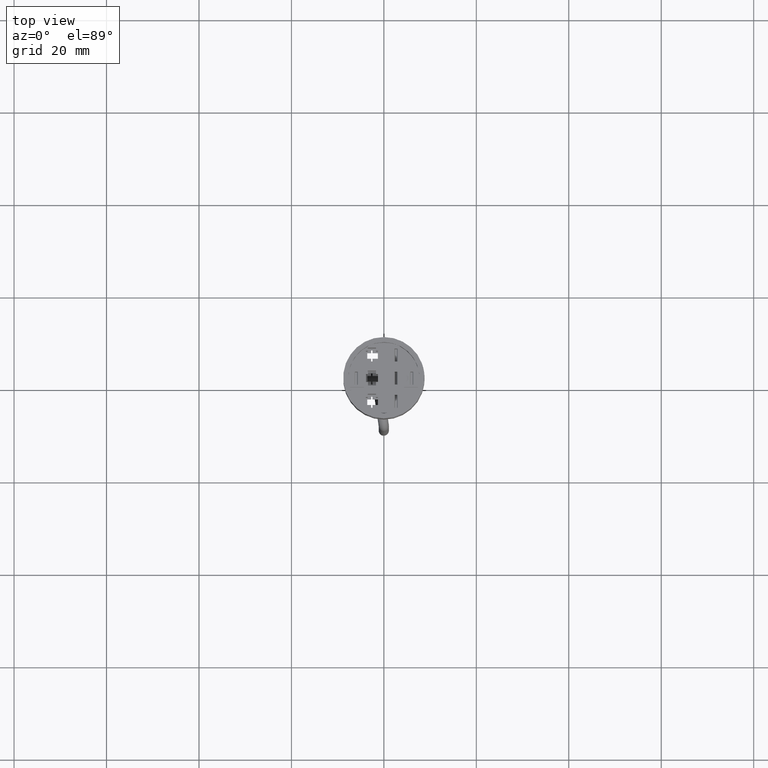
[diagram: clean part render]
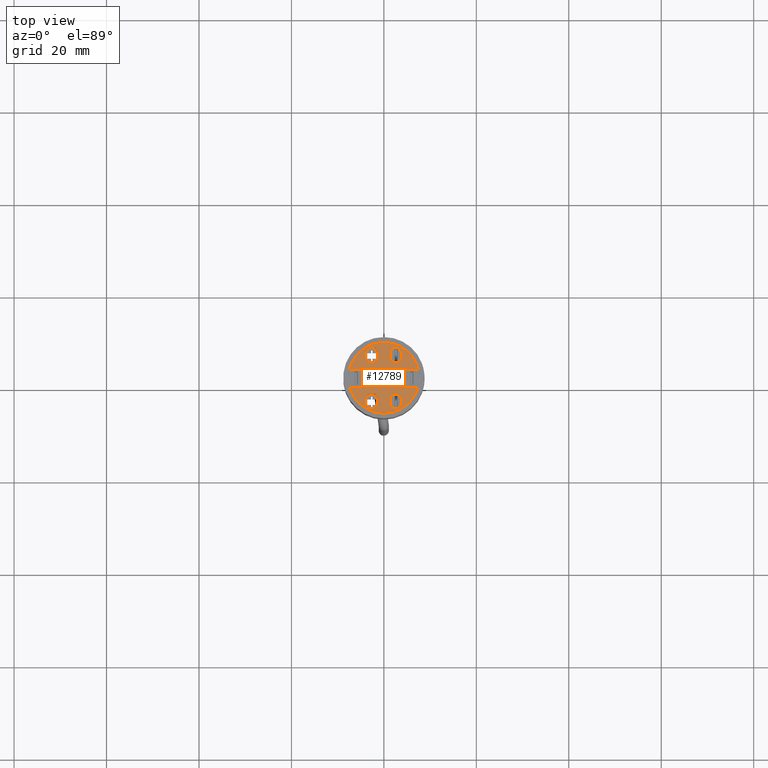
[diagram: same view with one face highlighted and labeled with its STEP entity id]
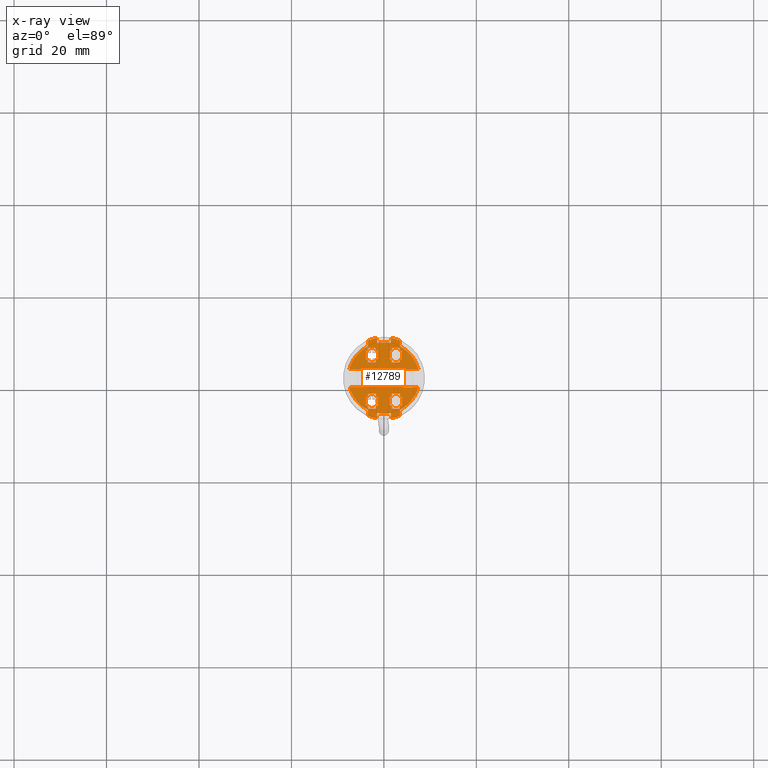
[diagram: x-ray of the same camera — body ghosted, the highlighted face saturated]
A machine part, top view. The second image highlights one B-rep face of the part: STEP entity #12789.
The next image is the same camera in x-ray: the body ghosted, the highlighted face saturated — about 0% of this face is hidden behind the body in this view.
In plain terms, the highlighted planar face has unit normal (0, -0, 1).
Its self-contained STEP definition (entity closure, byte-faithful):
#330=FACE_BOUND('',#1657,.T.);
#331=FACE_BOUND('',#1658,.T.);
#332=FACE_BOUND('',#1659,.T.);
#333=FACE_BOUND('',#1660,.T.);
#334=FACE_BOUND('',#1661,.T.);
#335=FACE_BOUND('',#1662,.T.);
#408=CIRCLE('',#13494,8.8);
#410=CIRCLE('',#13496,8.8);
#412=CIRCLE('',#13498,8.8);
#414=CIRCLE('',#13500,8.8);
#420=CIRCLE('',#13519,7.7);
#421=CIRCLE('',#13520,7.7);
#423=CIRCLE('',#13522,7.7);
#424=CIRCLE('',#13523,7.7);
#425=CIRCLE('',#13524,7.7);
#427=CIRCLE('',#13526,7.7);
#428=CIRCLE('',#13527,7.7);
#959=FACE_OUTER_BOUND('',#1656,.T.);
#1656=EDGE_LOOP('',(#9735,#9736,#9737,#9738,#9739,#9740,#9741,#9742,#9743,
#9744,#9745,#9746,#9747,#9748,#9749,#9750,#9751,#9752,#9753,#9754,#9755,
#9756,#9757,#9758,#9759));
#1657=EDGE_LOOP('',(#9760,#9761,#9762,#9763,#9764,#9765,#9766,#9767,#9768,
#9769,#9770,#9771));
#1658=EDGE_LOOP('',(#9772,#9773,#9774,#9775,#9776,#9777,#9778,#9779,#9780,
#9781,#9782,#9783));
#1659=EDGE_LOOP('',(#9784,#9785,#9786,#9787,#9788,#9789,#9790,#9791,#9792,
#9793,#9794,#9795));
#1660=EDGE_LOOP('',(#9796,#9797,#9798,#9799,#9800,#9801,#9802,#9803,#9804,
#9805,#9806,#9807));
#1661=EDGE_LOOP('',(#9808,#9809,#9810,#9811,#9812,#9813,#9814,#9815,#9816,
#9817,#9818,#9819));
#1662=EDGE_LOOP('',(#9820,#9821,#9822,#9823,#9824,#9825,#9826,#9827,#9828,
#9829,#9830,#9831));
#2135=LINE('',#17599,#3597);
#2139=LINE('',#17607,#3601);
#2142=LINE('',#17613,#3604);
#2145=LINE('',#17619,#3607);
#2148=LINE('',#17625,#3610);
#2151=LINE('',#17631,#3613);
#2154=LINE('',#17637,#3616);
#2173=LINE('',#17683,#3635);
#2176=LINE('',#17689,#3638);
#2179=LINE('',#17695,#3641);
#2182=LINE('',#17701,#3644);
#2185=LINE('',#17706,#3647);
#2255=LINE('',#17851,#3717);
#2259=LINE('',#17859,#3721);
#2262=LINE('',#17865,#3724);
#2265=LINE('',#17871,#3727);
#2268=LINE('',#17877,#3730);
#2271=LINE('',#17883,#3733);
#2274=LINE('',#17889,#3736);
#2293=LINE('',#17935,#3755);
#2296=LINE('',#17941,#3758);
#2299=LINE('',#17947,#3761);
#2302=LINE('',#17953,#3764);
#2305=LINE('',#17958,#3767);
#2375=LINE('',#18103,#3837);
#2379=LINE('',#18111,#3841);
#2382=LINE('',#18117,#3844);
#2385=LINE('',#18123,#3847);
#2388=LINE('',#18129,#3850);
#2391=LINE('',#18135,#3853);
#2394=LINE('',#18141,#3856);
#2413=LINE('',#18187,#3875);
#2416=LINE('',#18193,#3878);
#2419=LINE('',#18199,#3881);
#2422=LINE('',#18205,#3884);
#2425=LINE('',#18210,#3887);
#2926=LINE('',#19853,#4388);
#2929=LINE('',#19858,#4391);
#2930=LINE('',#19861,#4392);
#2935=LINE('',#19872,#4397);
#2938=LINE('',#19881,#4400);
#2941=LINE('',#19886,#4403);
#2942=LINE('',#19889,#4404);
#2947=LINE('',#19900,#4409);
#2953=LINE('',#19929,#4415);
#2954=LINE('',#19931,#4416);
#2955=LINE('',#19932,#4417);
#2956=LINE('',#19934,#4418);
#2957=LINE('',#19936,#4419);
#2958=LINE('',#19937,#4420);
#2959=LINE('',#19940,#4421);
#2960=LINE('',#19942,#4422);
#2961=LINE('',#19944,#4423);
#2962=LINE('',#19946,#4424);
#2963=LINE('',#19948,#4425);
#2964=LINE('',#19950,#4426);
#2965=LINE('',#19952,#4427);
#2966=LINE('',#19954,#4428);
#2967=LINE('',#19956,#4429);
#2968=LINE('',#19958,#4430);
#2969=LINE('',#19960,#4431);
#2970=LINE('',#19961,#4432);
#2971=LINE('',#19964,#4433);
#2972=LINE('',#19966,#4434);
#2973=LINE('',#19968,#4435);
#2974=LINE('',#19970,#4436);
#2975=LINE('',#19972,#4437);
#2976=LINE('',#19974,#4438);
#2977=LINE('',#19976,#4439);
#2978=LINE('',#19978,#4440);
#2979=LINE('',#19980,#4441);
#2980=LINE('',#19982,#4442);
#2981=LINE('',#19984,#4443);
#2982=LINE('',#19985,#4444);
#2983=LINE('',#19988,#4445);
#2984=LINE('',#19990,#4446);
#2985=LINE('',#19992,#4447);
#2986=LINE('',#19994,#4448);
#2987=LINE('',#19996,#4449);
#2988=LINE('',#19998,#4450);
#2989=LINE('',#20000,#4451);
#2990=LINE('',#20002,#4452);
#2991=LINE('',#20004,#4453);
#2992=LINE('',#20006,#4454);
#2993=LINE('',#20008,#4455);
#2994=LINE('',#20009,#4456);
#3597=VECTOR('',#14226,10.);
#3601=VECTOR('',#14232,10.);
#3604=VECTOR('',#14237,10.);
#3607=VECTOR('',#14242,10.);
#3610=VECTOR('',#14247,10.);
#3613=VECTOR('',#14252,10.);
#3616=VECTOR('',#14257,10.);
#3635=VECTOR('',#14302,10.);
#3638=VECTOR('',#14307,10.);
#3641=VECTOR('',#14312,10.);
#3644=VECTOR('',#14317,10.);
#3647=VECTOR('',#14322,10.);
#3717=VECTOR('',#14426,10.);
#3721=VECTOR('',#14432,10.);
#3724=VECTOR('',#14437,10.);
#3727=VECTOR('',#14442,10.);
#3730=VECTOR('',#14447,10.);
#3733=VECTOR('',#14452,10.);
#3736=VECTOR('',#14457,10.);
#3755=VECTOR('',#14502,10.);
#3758=VECTOR('',#14507,10.);
#3761=VECTOR('',#14512,10.);
#3764=VECTOR('',#14517,10.);
#3767=VECTOR('',#14522,10.);
#3837=VECTOR('',#14626,10.);
#3841=VECTOR('',#14632,10.);
#3844=VECTOR('',#14637,10.);
#3847=VECTOR('',#14642,10.);
#3850=VECTOR('',#14647,10.);
#3853=VECTOR('',#14652,10.);
#3856=VECTOR('',#14657,10.);
#3875=VECTOR('',#14702,10.);
#3878=VECTOR('',#14707,10.);
#3881=VECTOR('',#14712,10.);
#3884=VECTOR('',#14717,10.);
#3887=VECTOR('',#14722,10.);
#4388=VECTOR('',#15529,10.);
#4391=VECTOR('',#15534,10.);
#4392=VECTOR('',#15537,10.);
#4397=VECTOR('',#15548,10.);
#4400=VECTOR('',#15557,10.);
#4403=VECTOR('',#15562,10.);
#4404=VECTOR('',#15565,10.);
#4409=VECTOR('',#15576,10.);
#4415=VECTOR('',#15606,10.);
#4416=VECTOR('',#15607,10.);
#4417=VECTOR('',#15608,10.);
#4418=VECTOR('',#15609,10.);
#4419=VECTOR('',#15610,10.);
#4420=VECTOR('',#15611,10.);
#4421=VECTOR('',#15612,10.);
#4422=VECTOR('',#15613,10.);
#4423=VECTOR('',#15614,10.);
#4424=VECTOR('',#15615,10.);
#4425=VECTOR('',#15616,10.);
#4426=VECTOR('',#15617,10.);
#4427=VECTOR('',#15618,10.);
#4428=VECTOR('',#15619,10.);
#4429=VECTOR('',#15620,10.);
#4430=VECTOR('',#15621,10.);
#4431=VECTOR('',#15622,10.);
#4432=VECTOR('',#15623,10.);
#4433=VECTOR('',#15624,10.);
#4434=VECTOR('',#15625,10.);
#4435=VECTOR('',#15626,10.);
#4436=VECTOR('',#15627,10.);
#4437=VECTOR('',#15628,10.);
#4438=VECTOR('',#15629,10.);
#4439=VECTOR('',#15630,10.);
#4440=VECTOR('',#15631,10.);
#4441=VECTOR('',#15632,10.);
#4442=VECTOR('',#15633,10.);
#4443=VECTOR('',#15634,10.);
#4444=VECTOR('',#15635,10.);
#4445=VECTOR('',#15636,10.);
#4446=VECTOR('',#15637,10.);
#4447=VECTOR('',#15638,10.);
#4448=VECTOR('',#15639,10.);
#4449=VECTOR('',#15640,10.);
#4450=VECTOR('',#15641,10.);
#4451=VECTOR('',#15642,10.);
#4452=VECTOR('',#15643,10.);
#4453=VECTOR('',#15644,10.);
#4454=VECTOR('',#15645,10.);
#4455=VECTOR('',#15646,10.);
#4456=VECTOR('',#15647,10.);
#5057=VERTEX_POINT('',#17597);
#5058=VERTEX_POINT('',#17598);
#5061=VERTEX_POINT('',#17606);
#5063=VERTEX_POINT('',#17612);
#5065=VERTEX_POINT('',#17618);
#5067=VERTEX_POINT('',#17624);
#5069=VERTEX_POINT('',#17630);
#5071=VERTEX_POINT('',#17636);
#5085=VERTEX_POINT('',#17682);
#5087=VERTEX_POINT('',#17688);
#5089=VERTEX_POINT('',#17694);
#5091=VERTEX_POINT('',#17700);
#5149=VERTEX_POINT('',#17849);
#5150=VERTEX_POINT('',#17850);
#5153=VERTEX_POINT('',#17858);
#5155=VERTEX_POINT('',#17864);
#5157=VERTEX_POINT('',#17870);
#5159=VERTEX_POINT('',#17876);
#5161=VERTEX_POINT('',#17882);
#5163=VERTEX_POINT('',#17888);
#5177=VERTEX_POINT('',#17934);
#5179=VERTEX_POINT('',#17940);
#5181=VERTEX_POINT('',#17946);
#5183=VERTEX_POINT('',#17952);
#5241=VERTEX_POINT('',#18101);
#5242=VERTEX_POINT('',#18102);
#5245=VERTEX_POINT('',#18110);
#5247=VERTEX_POINT('',#18116);
#5249=VERTEX_POINT('',#18122);
#5251=VERTEX_POINT('',#18128);
#5253=VERTEX_POINT('',#18134);
#5255=VERTEX_POINT('',#18140);
#5269=VERTEX_POINT('',#18186);
#5271=VERTEX_POINT('',#18192);
#5273=VERTEX_POINT('',#18198);
#5275=VERTEX_POINT('',#18204);
#5740=VERTEX_POINT('',#19816);
#5741=VERTEX_POINT('',#19818);
#5744=VERTEX_POINT('',#19824);
#5745=VERTEX_POINT('',#19826);
#5748=VERTEX_POINT('',#19832);
#5749=VERTEX_POINT('',#19834);
#5752=VERTEX_POINT('',#19840);
#5753=VERTEX_POINT('',#19842);
#5756=VERTEX_POINT('',#19852);
#5757=VERTEX_POINT('',#19856);
#5758=VERTEX_POINT('',#19860);
#5761=VERTEX_POINT('',#19870);
#5764=VERTEX_POINT('',#19880);
#5765=VERTEX_POINT('',#19884);
#5766=VERTEX_POINT('',#19888);
#5769=VERTEX_POINT('',#19898);
#5771=VERTEX_POINT('',#19904);
#5772=VERTEX_POINT('',#19907);
#5775=VERTEX_POINT('',#19913);
#5776=VERTEX_POINT('',#19917);
#5779=VERTEX_POINT('',#19923);
#5780=VERTEX_POINT('',#19928);
#5781=VERTEX_POINT('',#19930);
#5782=VERTEX_POINT('',#19933);
#5783=VERTEX_POINT('',#19935);
#5784=VERTEX_POINT('',#19938);
#5785=VERTEX_POINT('',#19939);
#5786=VERTEX_POINT('',#19941);
#5787=VERTEX_POINT('',#19943);
#5788=VERTEX_POINT('',#19945);
#5789=VERTEX_POINT('',#19947);
#5790=VERTEX_POINT('',#19949);
#5791=VERTEX_POINT('',#19951);
#5792=VERTEX_POINT('',#19953);
#5793=VERTEX_POINT('',#19955);
#5794=VERTEX_POINT('',#19957);
#5795=VERTEX_POINT('',#19959);
#5796=VERTEX_POINT('',#19962);
#5797=VERTEX_POINT('',#19963);
#5798=VERTEX_POINT('',#19965);
#5799=VERTEX_POINT('',#19967);
#5800=VERTEX_POINT('',#19969);
#5801=VERTEX_POINT('',#19971);
#5802=VERTEX_POINT('',#19973);
#5803=VERTEX_POINT('',#19975);
#5804=VERTEX_POINT('',#19977);
#5805=VERTEX_POINT('',#19979);
#5806=VERTEX_POINT('',#19981);
#5807=VERTEX_POINT('',#19983);
#5808=VERTEX_POINT('',#19986);
#5809=VERTEX_POINT('',#19987);
#5810=VERTEX_POINT('',#19989);
#5811=VERTEX_POINT('',#19991);
#5812=VERTEX_POINT('',#19993);
#5813=VERTEX_POINT('',#19995);
#5814=VERTEX_POINT('',#19997);
#5815=VERTEX_POINT('',#19999);
#5816=VERTEX_POINT('',#20001);
#5817=VERTEX_POINT('',#20003);
#5818=VERTEX_POINT('',#20005);
#5819=VERTEX_POINT('',#20007);
#6320=EDGE_CURVE('',#5057,#5058,#2135,.T.);
#6324=EDGE_CURVE('',#5061,#5057,#2139,.T.);
#6327=EDGE_CURVE('',#5063,#5061,#2142,.T.);
#6330=EDGE_CURVE('',#5065,#5063,#2145,.T.);
#6333=EDGE_CURVE('',#5067,#5065,#2148,.T.);
#6336=EDGE_CURVE('',#5069,#5067,#2151,.T.);
#6339=EDGE_CURVE('',#5071,#5069,#2154,.T.);
#6362=EDGE_CURVE('',#5085,#5071,#2173,.T.);
#6365=EDGE_CURVE('',#5087,#5085,#2176,.T.);
#6368=EDGE_CURVE('',#5089,#5087,#2179,.T.);
#6371=EDGE_CURVE('',#5091,#5089,#2182,.T.);
#6374=EDGE_CURVE('',#5058,#5091,#2185,.T.);
#6446=EDGE_CURVE('',#5149,#5150,#2255,.T.);
#6450=EDGE_CURVE('',#5153,#5149,#2259,.T.);
#6453=EDGE_CURVE('',#5155,#5153,#2262,.T.);
#6456=EDGE_CURVE('',#5157,#5155,#2265,.T.);
#6459=EDGE_CURVE('',#5159,#5157,#2268,.T.);
#6462=EDGE_CURVE('',#5161,#5159,#2271,.T.);
#6465=EDGE_CURVE('',#5163,#5161,#2274,.T.);
#6488=EDGE_CURVE('',#5177,#5163,#2293,.T.);
#6491=EDGE_CURVE('',#5179,#5177,#2296,.T.);
#6494=EDGE_CURVE('',#5181,#5179,#2299,.T.);
#6497=EDGE_CURVE('',#5183,#5181,#2302,.T.);
#6500=EDGE_CURVE('',#5150,#5183,#2305,.T.);
#6572=EDGE_CURVE('',#5241,#5242,#2375,.T.);
#6576=EDGE_CURVE('',#5245,#5241,#2379,.T.);
#6579=EDGE_CURVE('',#5247,#5245,#2382,.T.);
#6582=EDGE_CURVE('',#5249,#5247,#2385,.T.);
#6585=EDGE_CURVE('',#5251,#5249,#2388,.T.);
#6588=EDGE_CURVE('',#5253,#5251,#2391,.T.);
#6591=EDGE_CURVE('',#5255,#5253,#2394,.T.);
#6614=EDGE_CURVE('',#5269,#5255,#2413,.T.);
#6617=EDGE_CURVE('',#5271,#5269,#2416,.T.);
#6620=EDGE_CURVE('',#5273,#5271,#2419,.T.);
#6623=EDGE_CURVE('',#5275,#5273,#2422,.T.);
#6626=EDGE_CURVE('',#5242,#5275,#2425,.T.);
#7226=EDGE_CURVE('',#5740,#5741,#408,.T.);
#7230=EDGE_CURVE('',#5744,#5745,#410,.T.);
#7234=EDGE_CURVE('',#5748,#5749,#412,.T.);
#7238=EDGE_CURVE('',#5752,#5753,#414,.T.);
#7243=EDGE_CURVE('',#5745,#5756,#2926,.T.);
#7246=EDGE_CURVE('',#5744,#5757,#2929,.T.);
#7247=EDGE_CURVE('',#5758,#5741,#2930,.T.);
#7253=EDGE_CURVE('',#5761,#5740,#2935,.T.);
#7257=EDGE_CURVE('',#5753,#5764,#2938,.T.);
#7260=EDGE_CURVE('',#5752,#5765,#2941,.T.);
#7261=EDGE_CURVE('',#5766,#5749,#2942,.T.);
#7267=EDGE_CURVE('',#5769,#5748,#2947,.T.);
#7270=EDGE_CURVE('',#5771,#5765,#420,.T.);
#7271=EDGE_CURVE('',#5764,#5772,#421,.T.);
#7275=EDGE_CURVE('',#5775,#5769,#423,.T.);
#7276=EDGE_CURVE('',#5766,#5761,#424,.T.);
#7277=EDGE_CURVE('',#5758,#5776,#425,.T.);
#7281=EDGE_CURVE('',#5779,#5757,#427,.T.);
#7282=EDGE_CURVE('',#5756,#5771,#428,.T.);
#7283=EDGE_CURVE('',#5775,#5780,#2953,.T.);
#7284=EDGE_CURVE('',#5780,#5781,#2954,.T.);
#7285=EDGE_CURVE('',#5781,#5772,#2955,.T.);
#7286=EDGE_CURVE('',#5779,#5782,#2956,.T.);
#7287=EDGE_CURVE('',#5782,#5783,#2957,.T.);
#7288=EDGE_CURVE('',#5783,#5776,#2958,.T.);
#7289=EDGE_CURVE('',#5784,#5785,#2959,.T.);
#7290=EDGE_CURVE('',#5785,#5786,#2960,.T.);
#7291=EDGE_CURVE('',#5786,#5787,#2961,.T.);
#7292=EDGE_CURVE('',#5787,#5788,#2962,.T.);
#7293=EDGE_CURVE('',#5788,#5789,#2963,.T.);
#7294=EDGE_CURVE('',#5789,#5790,#2964,.T.);
#7295=EDGE_CURVE('',#5790,#5791,#2965,.T.);
#7296=EDGE_CURVE('',#5791,#5792,#2966,.T.);
#7297=EDGE_CURVE('',#5792,#5793,#2967,.T.);
#7298=EDGE_CURVE('',#5793,#5794,#2968,.T.);
#7299=EDGE_CURVE('',#5794,#5795,#2969,.T.);
#7300=EDGE_CURVE('',#5795,#5784,#2970,.T.);
#7301=EDGE_CURVE('',#5796,#5797,#2971,.T.);
#7302=EDGE_CURVE('',#5797,#5798,#2972,.T.);
#7303=EDGE_CURVE('',#5798,#5799,#2973,.T.);
#7304=EDGE_CURVE('',#5799,#5800,#2974,.T.);
#7305=EDGE_CURVE('',#5800,#5801,#2975,.T.);
#7306=EDGE_CURVE('',#5801,#5802,#2976,.T.);
#7307=EDGE_CURVE('',#5802,#5803,#2977,.T.);
#7308=EDGE_CURVE('',#5803,#5804,#2978,.T.);
#7309=EDGE_CURVE('',#5804,#5805,#2979,.T.);
#7310=EDGE_CURVE('',#5805,#5806,#2980,.T.);
#7311=EDGE_CURVE('',#5806,#5807,#2981,.T.);
#7312=EDGE_CURVE('',#5807,#5796,#2982,.T.);
#7313=EDGE_CURVE('',#5808,#5809,#2983,.T.);
#7314=EDGE_CURVE('',#5809,#5810,#2984,.T.);
#7315=EDGE_CURVE('',#5810,#5811,#2985,.T.);
#7316=EDGE_CURVE('',#5811,#5812,#2986,.T.);
#7317=EDGE_CURVE('',#5812,#5813,#2987,.T.);
#7318=EDGE_CURVE('',#5813,#5814,#2988,.T.);
#7319=EDGE_CURVE('',#5814,#5815,#2989,.T.);
#7320=EDGE_CURVE('',#5815,#5816,#2990,.T.);
#7321=EDGE_CURVE('',#5816,#5817,#2991,.T.);
#7322=EDGE_CURVE('',#5817,#5818,#2992,.T.);
#7323=EDGE_CURVE('',#5818,#5819,#2993,.T.);
#7324=EDGE_CURVE('',#5819,#5808,#2994,.T.);
#9735=ORIENTED_EDGE('',*,*,#7276,.F.);
#9736=ORIENTED_EDGE('',*,*,#7261,.T.);
#9737=ORIENTED_EDGE('',*,*,#7234,.F.);
#9738=ORIENTED_EDGE('',*,*,#7267,.F.);
#9739=ORIENTED_EDGE('',*,*,#7275,.F.);
#9740=ORIENTED_EDGE('',*,*,#7283,.T.);
#9741=ORIENTED_EDGE('',*,*,#7284,.T.);
#9742=ORIENTED_EDGE('',*,*,#7285,.T.);
#9743=ORIENTED_EDGE('',*,*,#7271,.F.);
#9744=ORIENTED_EDGE('',*,*,#7257,.F.);
#9745=ORIENTED_EDGE('',*,*,#7238,.F.);
#9746=ORIENTED_EDGE('',*,*,#7260,.T.);
#9747=ORIENTED_EDGE('',*,*,#7270,.F.);
#9748=ORIENTED_EDGE('',*,*,#7282,.F.);
#9749=ORIENTED_EDGE('',*,*,#7243,.F.);
#9750=ORIENTED_EDGE('',*,*,#7230,.F.);
#9751=ORIENTED_EDGE('',*,*,#7246,.T.);
#9752=ORIENTED_EDGE('',*,*,#7281,.F.);
#9753=ORIENTED_EDGE('',*,*,#7286,.T.);
#9754=ORIENTED_EDGE('',*,*,#7287,.T.);
#9755=ORIENTED_EDGE('',*,*,#7288,.T.);
#9756=ORIENTED_EDGE('',*,*,#7277,.F.);
#9757=ORIENTED_EDGE('',*,*,#7247,.T.);
#9758=ORIENTED_EDGE('',*,*,#7226,.F.);
#9759=ORIENTED_EDGE('',*,*,#7253,.F.);
#9760=ORIENTED_EDGE('',*,*,#7289,.T.);
#9761=ORIENTED_EDGE('',*,*,#7290,.T.);
#9762=ORIENTED_EDGE('',*,*,#7291,.T.);
#9763=ORIENTED_EDGE('',*,*,#7292,.T.);
#9764=ORIENTED_EDGE('',*,*,#7293,.T.);
#9765=ORIENTED_EDGE('',*,*,#7294,.T.);
#9766=ORIENTED_EDGE('',*,*,#7295,.T.);
#9767=ORIENTED_EDGE('',*,*,#7296,.T.);
#9768=ORIENTED_EDGE('',*,*,#7297,.T.);
#9769=ORIENTED_EDGE('',*,*,#7298,.T.);
#9770=ORIENTED_EDGE('',*,*,#7299,.T.);
#9771=ORIENTED_EDGE('',*,*,#7300,.T.);
#9772=ORIENTED_EDGE('',*,*,#7301,.T.);
#9773=ORIENTED_EDGE('',*,*,#7302,.T.);
#9774=ORIENTED_EDGE('',*,*,#7303,.T.);
#9775=ORIENTED_EDGE('',*,*,#7304,.T.);
#9776=ORIENTED_EDGE('',*,*,#7305,.T.);
#9777=ORIENTED_EDGE('',*,*,#7306,.T.);
#9778=ORIENTED_EDGE('',*,*,#7307,.T.);
#9779=ORIENTED_EDGE('',*,*,#7308,.T.);
#9780=ORIENTED_EDGE('',*,*,#7309,.T.);
#9781=ORIENTED_EDGE('',*,*,#7310,.T.);
#9782=ORIENTED_EDGE('',*,*,#7311,.T.);
#9783=ORIENTED_EDGE('',*,*,#7312,.T.);
#9784=ORIENTED_EDGE('',*,*,#6626,.T.);
#9785=ORIENTED_EDGE('',*,*,#6623,.T.);
#9786=ORIENTED_EDGE('',*,*,#6620,.T.);
#9787=ORIENTED_EDGE('',*,*,#6617,.T.);
#9788=ORIENTED_EDGE('',*,*,#6614,.T.);
#9789=ORIENTED_EDGE('',*,*,#6591,.T.);
#9790=ORIENTED_EDGE('',*,*,#6588,.T.);
#9791=ORIENTED_EDGE('',*,*,#6585,.T.);
#9792=ORIENTED_EDGE('',*,*,#6582,.T.);
#9793=ORIENTED_EDGE('',*,*,#6579,.T.);
#9794=ORIENTED_EDGE('',*,*,#6576,.T.);
#9795=ORIENTED_EDGE('',*,*,#6572,.T.);
#9796=ORIENTED_EDGE('',*,*,#6374,.T.);
#9797=ORIENTED_EDGE('',*,*,#6371,.T.);
#9798=ORIENTED_EDGE('',*,*,#6368,.T.);
#9799=ORIENTED_EDGE('',*,*,#6365,.T.);
#9800=ORIENTED_EDGE('',*,*,#6362,.T.);
#9801=ORIENTED_EDGE('',*,*,#6339,.T.);
#9802=ORIENTED_EDGE('',*,*,#6336,.T.);
#9803=ORIENTED_EDGE('',*,*,#6333,.T.);
#9804=ORIENTED_EDGE('',*,*,#6330,.T.);
#9805=ORIENTED_EDGE('',*,*,#6327,.T.);
#9806=ORIENTED_EDGE('',*,*,#6324,.T.);
#9807=ORIENTED_EDGE('',*,*,#6320,.T.);
#9808=ORIENTED_EDGE('',*,*,#7313,.T.);
#9809=ORIENTED_EDGE('',*,*,#7314,.T.);
#9810=ORIENTED_EDGE('',*,*,#7315,.T.);
#9811=ORIENTED_EDGE('',*,*,#7316,.T.);
#9812=ORIENTED_EDGE('',*,*,#7317,.T.);
#9813=ORIENTED_EDGE('',*,*,#7318,.T.);
#9814=ORIENTED_EDGE('',*,*,#7319,.T.);
#9815=ORIENTED_EDGE('',*,*,#7320,.T.);
#9816=ORIENTED_EDGE('',*,*,#7321,.T.);
#9817=ORIENTED_EDGE('',*,*,#7322,.T.);
#9818=ORIENTED_EDGE('',*,*,#7323,.T.);
#9819=ORIENTED_EDGE('',*,*,#7324,.T.);
#9820=ORIENTED_EDGE('',*,*,#6494,.T.);
#9821=ORIENTED_EDGE('',*,*,#6491,.T.);
#9822=ORIENTED_EDGE('',*,*,#6488,.T.);
#9823=ORIENTED_EDGE('',*,*,#6465,.T.);
#9824=ORIENTED_EDGE('',*,*,#6462,.T.);
#9825=ORIENTED_EDGE('',*,*,#6459,.T.);
#9826=ORIENTED_EDGE('',*,*,#6456,.T.);
#9827=ORIENTED_EDGE('',*,*,#6453,.T.);
#9828=ORIENTED_EDGE('',*,*,#6450,.T.);
#9829=ORIENTED_EDGE('',*,*,#6446,.T.);
#9830=ORIENTED_EDGE('',*,*,#6500,.T.);
#9831=ORIENTED_EDGE('',*,*,#6497,.T.);
#12254=PLANE('',#13528);
#12789=ADVANCED_FACE('',(#959,#330,#331,#332,#333,#334,#335),#12254,.T.);
#13494=AXIS2_PLACEMENT_3D('',#19819,#15500,#15501);
#13496=AXIS2_PLACEMENT_3D('',#19827,#15506,#15507);
#13498=AXIS2_PLACEMENT_3D('',#19835,#15512,#15513);
#13500=AXIS2_PLACEMENT_3D('',#19843,#15518,#15519);
#13519=AXIS2_PLACEMENT_3D('',#19906,#15582,#15583);
#13520=AXIS2_PLACEMENT_3D('',#19908,#15584,#15585);
#13522=AXIS2_PLACEMENT_3D('',#19915,#15590,#15591);
#13523=AXIS2_PLACEMENT_3D('',#19916,#15592,#15593);
#13524=AXIS2_PLACEMENT_3D('',#19918,#15594,#15595);
#13526=AXIS2_PLACEMENT_3D('',#19925,#15600,#15601);
#13527=AXIS2_PLACEMENT_3D('',#19926,#15602,#15603);
#13528=AXIS2_PLACEMENT_3D('',#19927,#15604,#15605);
#14226=DIRECTION('',(-8.63414043766191E-15,1.,1.23414285699513E-14));
#14232=DIRECTION('',(-1.,-8.45791456073728E-15,-9.05267235124983E-30));
#14237=DIRECTION('',(7.84112399150108E-15,-1.,-1.23414285699513E-14));
#14242=DIRECTION('',(-1.,-7.84112399150108E-15,-1.44059559840165E-30));
#14247=DIRECTION('',(8.45791456073728E-15,-1.,-1.23414285699513E-14));
#14252=DIRECTION('',(1.,7.84112399150108E-15,1.44059559840165E-30));
#14257=DIRECTION('',(7.84112399150108E-15,-1.,-1.23414285699513E-14));
#14302=DIRECTION('',(1.,9.07470512997347E-15,1.6664749104098E-29));
#14307=DIRECTION('',(-7.84112399150108E-15,1.,1.23414285699513E-14));
#14312=DIRECTION('',(1.,1.0616681553064E-14,3.56949409862185E-29));
#14317=DIRECTION('',(-7.84112399150108E-15,1.,1.23414285699513E-14));
#14322=DIRECTION('',(-1.,-7.84112399150108E-15,-1.44059559840165E-30));
#14426=DIRECTION('',(-8.63414043766191E-15,1.,1.23414285699513E-14));
#14432=DIRECTION('',(-1.,-8.45791456073728E-15,-9.05267235124983E-30));
#14437=DIRECTION('',(7.84112399150108E-15,-1.,-1.23414285699513E-14));
#14442=DIRECTION('',(-1.,-7.84112399150108E-15,-1.44059559840165E-30));
#14447=DIRECTION('',(8.45791456073728E-15,-1.,-1.23414285699513E-14));
#14452=DIRECTION('',(1.,7.84112399150108E-15,1.44059559840165E-30));
#14457=DIRECTION('',(7.84112399150108E-15,-1.,-1.23414285699513E-14));
#14502=DIRECTION('',(1.,9.07470512997347E-15,1.6664749104098E-29));
#14507=DIRECTION('',(-7.84112399150108E-15,1.,1.23414285699513E-14));
#14512=DIRECTION('',(1.,1.0616681553064E-14,3.56949409862185E-29));
#14517=DIRECTION('',(-7.84112399150108E-15,1.,1.23414285699513E-14));
#14522=DIRECTION('',(-1.,-7.84112399150108E-15,-1.44059559840165E-30));
#14626=DIRECTION('',(-8.63414043766191E-15,1.,1.23414285699513E-14));
#14632=DIRECTION('',(-1.,-8.45791456073728E-15,-9.05267235124983E-30));
#14637=DIRECTION('',(7.84112399150108E-15,-1.,-1.23414285699513E-14));
#14642=DIRECTION('',(-1.,-7.84112399150108E-15,-1.44059559840165E-30));
#14647=DIRECTION('',(8.45791456073728E-15,-1.,-1.23414285699513E-14));
#14652=DIRECTION('',(1.,7.84112399150108E-15,1.44059559840165E-30));
#14657=DIRECTION('',(7.84112399150108E-15,-1.,-1.23414285699513E-14));
#14702=DIRECTION('',(1.,9.07470512997347E-15,1.6664749104098E-29));
#14707=DIRECTION('',(-7.84112399150108E-15,1.,1.23414285699513E-14));
#14712=DIRECTION('',(1.,1.0616681553064E-14,3.56949409862185E-29));
#14717=DIRECTION('',(-7.84112399150108E-15,1.,1.23414285699513E-14));
#14722=DIRECTION('',(-1.,-7.84112399150108E-15,-1.44059559840165E-30));
#15500=DIRECTION('center_axis',(-9.53300760508407E-29,1.23414285699513E-14,
-1.));
#15501=DIRECTION('ref_axis',(7.84112399150108E-15,-1.,-1.23414285699513E-14));
#15506=DIRECTION('center_axis',(-9.53300760508407E-29,1.23414285699513E-14,
-1.));
#15507=DIRECTION('ref_axis',(7.84112399150108E-15,-1.,-1.23414285699513E-14));
#15512=DIRECTION('center_axis',(-9.53300760508407E-29,1.23414285699513E-14,
-1.));
#15513=DIRECTION('ref_axis',(7.84112399150108E-15,-1.,-1.23414285699513E-14));
#15518=DIRECTION('center_axis',(-9.53300760508407E-29,1.23414285699513E-14,
-1.));
#15519=DIRECTION('ref_axis',(7.84112399150108E-15,-1.,-1.23414285699513E-14));
#15529=DIRECTION('',(7.84112399150108E-15,-1.,-1.23414285699513E-14));
#15534=DIRECTION('',(7.84112399150108E-15,-1.,-1.23414285699513E-14));
#15537=DIRECTION('',(7.84112399150108E-15,-1.,-1.23414285699513E-14));
#15548=DIRECTION('',(7.84112399150108E-15,-1.,-1.23414285699513E-14));
#15557=DIRECTION('',(7.84112399150108E-15,-1.,-1.23414285699513E-14));
#15562=DIRECTION('',(7.84112399150108E-15,-1.,-1.23414285699513E-14));
#15565=DIRECTION('',(7.84112399150108E-15,-1.,-1.23414285699513E-14));
#15576=DIRECTION('',(7.84112399150108E-15,-1.,-1.23414285699513E-14));
#15582=DIRECTION('center_axis',(-9.53300760508407E-29,1.23414285699513E-14,
-1.));
#15583=DIRECTION('ref_axis',(7.84112399150108E-15,-1.,-1.23414285699513E-14));
#15584=DIRECTION('center_axis',(-9.53300760508407E-29,1.23414285699513E-14,
-1.));
#15585=DIRECTION('ref_axis',(7.84112399150108E-15,-1.,-1.23414285699513E-14));
#15590=DIRECTION('center_axis',(-9.53300760508407E-29,1.23414285699513E-14,
-1.));
#15591=DIRECTION('ref_axis',(7.84112399150108E-15,-1.,-1.23414285699513E-14));
#15592=DIRECTION('center_axis',(-9.53300760508407E-29,1.23414285699513E-14,
-1.));
#15593=DIRECTION('ref_axis',(7.84112399150108E-15,-1.,-1.23414285699513E-14));
#15594=DIRECTION('center_axis',(-9.53300760508407E-29,1.23414285699513E-14,
-1.));
#15595=DIRECTION('ref_axis',(7.84112399150108E-15,-1.,-1.23414285699513E-14));
#15600=DIRECTION('center_axis',(-9.53300760508407E-29,1.23414285699513E-14,
-1.));
#15601=DIRECTION('ref_axis',(7.84112399150108E-15,-1.,-1.23414285699513E-14));
#15602=DIRECTION('center_axis',(-9.53300760508407E-29,1.23414285699513E-14,
-1.));
#15603=DIRECTION('ref_axis',(7.84112399150108E-15,-1.,-1.23414285699513E-14));
#15604=DIRECTION('center_axis',(9.53300760508407E-29,-1.23414285699513E-14,
1.));
#15605=DIRECTION('ref_axis',(-1.,-7.84112399150108E-15,-1.44059559840165E-30));
#15606=DIRECTION('',(-1.,4.83724223787806E-12,5.97938096303745E-26));
#15607=DIRECTION('',(9.69189988643291E-12,1.,1.23414285699513E-14));
#15608=DIRECTION('',(1.,-4.84379227938027E-12,-5.98746464997043E-26));
#15609=DIRECTION('',(1.,4.85947452736327E-12,5.98775276909011E-26));
#15610=DIRECTION('',(9.70758213441591E-12,-1.,-1.23414285699513E-14));
#15611=DIRECTION('',(-1.,-4.85292448586106E-12,-5.97966908215713E-26));
#15612=DIRECTION('',(1.,7.84112399150108E-15,1.44059559840165E-30));
#15613=DIRECTION('',(8.14951927611918E-15,-1.,-1.23414285699513E-14));
#15614=DIRECTION('',(-1.,-7.84112399150108E-15,-1.44059559840165E-30));
#15615=DIRECTION('',(7.84112399150108E-15,-1.,-1.23414285699513E-14));
#15616=DIRECTION('',(-1.,-8.45791456073728E-15,-9.05267235124983E-30));
#15617=DIRECTION('',(-8.63414043766191E-15,1.,1.23414285699513E-14));
#15618=DIRECTION('',(-1.,-7.84112399150108E-15,-1.44059559840165E-30));
#15619=DIRECTION('',(-7.84112399150108E-15,1.,1.23414285699513E-14));
#15620=DIRECTION('',(1.,1.0616681553064E-14,3.56949409862185E-29));
#15621=DIRECTION('',(-7.84112399150108E-15,1.,1.23414285699513E-14));
#15622=DIRECTION('',(1.,9.07470512997347E-15,1.6664749104098E-29));
#15623=DIRECTION('',(8.23763221458149E-15,-1.,-1.23414285699513E-14));
#15624=DIRECTION('',(1.,7.84112399150108E-15,1.44059559840165E-30));
#15625=DIRECTION('',(8.14951927611918E-15,-1.,-1.23414285699513E-14));
#15626=DIRECTION('',(-1.,-7.84112399150108E-15,-1.44059559840165E-30));
#15627=DIRECTION('',(7.84112399150108E-15,-1.,-1.23414285699513E-14));
#15628=DIRECTION('',(-1.,-8.45791456073728E-15,-9.05267235124983E-30));
#15629=DIRECTION('',(-8.63414043766191E-15,1.,1.23414285699513E-14));
#15630=DIRECTION('',(-1.,-7.84112399150108E-15,-1.44059559840165E-30));
#15631=DIRECTION('',(-7.84112399150108E-15,1.,1.23414285699513E-14));
#15632=DIRECTION('',(1.,1.0616681553064E-14,3.56949409862185E-29));
#15633=DIRECTION('',(-7.84112399150108E-15,1.,1.23414285699513E-14));
#15634=DIRECTION('',(1.,9.07470512997347E-15,1.6664749104098E-29));
#15635=DIRECTION('',(8.23763221458149E-15,-1.,-1.23414285699513E-14));
#15636=DIRECTION('',(-1.,-7.84112399150108E-15,-1.44059559840165E-30));
#15637=DIRECTION('',(7.84112399150108E-15,-1.,-1.23414285699513E-14));
#15638=DIRECTION('',(-1.,-8.45791456073728E-15,-9.05267235124983E-30));
#15639=DIRECTION('',(-8.63414043766191E-15,1.,1.23414285699513E-14));
#15640=DIRECTION('',(-1.,-7.84112399150108E-15,-1.44059559840165E-30));
#15641=DIRECTION('',(-7.84112399150108E-15,1.,1.23414285699513E-14));
#15642=DIRECTION('',(1.,1.0616681553064E-14,3.56949409862185E-29));
#15643=DIRECTION('',(-7.84112399150108E-15,1.,1.23414285699513E-14));
#15644=DIRECTION('',(1.,9.07470512997347E-15,1.6664749104098E-29));
#15645=DIRECTION('',(8.23763221458149E-15,-1.,-1.23414285699513E-14));
#15646=DIRECTION('',(1.,7.84112399150108E-15,1.44059559840165E-30));
#15647=DIRECTION('',(8.14951927611918E-15,-1.,-1.23414285699513E-14));
#17597=CARTESIAN_POINT('',(1.70000000000005,-6.6000000000001,10.2999999999999));
#17598=CARTESIAN_POINT('',(1.70000000000004,-5.9000000000001,10.2999999999999));
#17599=CARTESIAN_POINT('',(1.70000000000002,-3.3000000000001,10.2999999999999));
#17606=CARTESIAN_POINT('',(3.50000000000005,-6.60000000000008,10.2999999999999));
#17607=CARTESIAN_POINT('',(1.75000000000005,-6.6000000000001,10.2999999999999));
#17612=CARTESIAN_POINT('',(3.50000000000004,-5.90000000000009,10.2999999999999));
#17613=CARTESIAN_POINT('',(3.50000000000002,-2.95000000000009,10.2999999999999));
#17618=CARTESIAN_POINT('',(3.90000000000004,-5.90000000000008,10.2999999999999));
#17619=CARTESIAN_POINT('',(1.95000000000005,-5.9000000000001,10.2999999999999));
#17624=CARTESIAN_POINT('',(3.90000000000003,-4.10000000000008,10.2999999999999));
#17625=CARTESIAN_POINT('',(3.90000000000001,-2.05000000000009,10.2999999999999));
#17630=CARTESIAN_POINT('',(3.50000000000003,-4.10000000000008,10.2999999999999));
#17631=CARTESIAN_POINT('',(1.75000000000003,-4.1000000000001,10.2999999999999));
#17636=CARTESIAN_POINT('',(3.50000000000002,-3.40000000000008,10.2999999999999));
#17637=CARTESIAN_POINT('',(3.50000000000001,-1.70000000000009,10.3));
#17682=CARTESIAN_POINT('',(1.70000000000002,-3.4000000000001,10.2999999999999));
#17683=CARTESIAN_POINT('',(0.850000000000027,-3.40000000000011,10.2999999999999));
#17688=CARTESIAN_POINT('',(1.70000000000003,-4.1000000000001,10.2999999999999));
#17689=CARTESIAN_POINT('',(1.70000000000001,-2.0500000000001,10.2999999999999));
#17694=CARTESIAN_POINT('',(1.30000000000003,-4.1000000000001,10.2999999999999));
#17695=CARTESIAN_POINT('',(0.650000000000037,-4.10000000000011,10.2999999999999));
#17700=CARTESIAN_POINT('',(1.30000000000004,-5.9000000000001,10.2999999999999));
#17701=CARTESIAN_POINT('',(1.30000000000002,-2.95000000000011,10.2999999999999));
#17706=CARTESIAN_POINT('',(0.850000000000045,-5.90000000000011,10.2999999999999));
#17849=CARTESIAN_POINT('',(1.70000000000001,-1.6000000000001,10.3));
#17850=CARTESIAN_POINT('',(1.70000000000001,-0.900000000000101,10.3));
#17851=CARTESIAN_POINT('',(1.7,-0.800000000000104,10.3));
#17858=CARTESIAN_POINT('',(3.50000000000001,-1.60000000000009,10.3));
#17859=CARTESIAN_POINT('',(1.75000000000001,-1.6000000000001,10.3));
#17864=CARTESIAN_POINT('',(3.50000000000001,-0.900000000000086,10.3));
#17865=CARTESIAN_POINT('',(3.5,-0.45000000000009,10.3));
#17870=CARTESIAN_POINT('',(3.90000000000001,-0.900000000000083,10.3));
#17871=CARTESIAN_POINT('',(1.95000000000001,-0.900000000000098,10.3));
#17876=CARTESIAN_POINT('',(3.89999999999999,0.899999999999918,10.3));
#17877=CARTESIAN_POINT('',(3.89999999999999,0.449999999999914,10.3));
#17882=CARTESIAN_POINT('',(3.49999999999999,0.899999999999914,10.3));
#17883=CARTESIAN_POINT('',(1.74999999999999,0.899999999999901,10.3));
#17888=CARTESIAN_POINT('',(3.49999999999998,1.59999999999992,10.3));
#17889=CARTESIAN_POINT('',(3.49999999999999,0.79999999999991,10.3));
#17934=CARTESIAN_POINT('',(1.69999999999998,1.5999999999999,10.3));
#17935=CARTESIAN_POINT('',(0.849999999999985,1.59999999999989,10.3));
#17940=CARTESIAN_POINT('',(1.69999999999999,0.8999999999999,10.3));
#17941=CARTESIAN_POINT('',(1.69999999999999,0.449999999999896,10.3));
#17946=CARTESIAN_POINT('',(1.29999999999999,0.899999999999896,10.3));
#17947=CARTESIAN_POINT('',(0.649999999999991,0.899999999999889,10.3));
#17952=CARTESIAN_POINT('',(1.30000000000001,-0.900000000000104,10.3));
#17953=CARTESIAN_POINT('',(1.3,-0.450000000000108,10.3));
#17958=CARTESIAN_POINT('',(0.850000000000006,-0.900000000000108,10.3));
#18101=CARTESIAN_POINT('',(1.69999999999997,3.3999999999999,10.3));
#18102=CARTESIAN_POINT('',(1.69999999999997,4.0999999999999,10.3));
#18103=CARTESIAN_POINT('',(1.69999999999999,1.6999999999999,10.3));
#18110=CARTESIAN_POINT('',(3.49999999999997,3.39999999999991,10.3));
#18111=CARTESIAN_POINT('',(1.74999999999997,3.3999999999999,10.3));
#18116=CARTESIAN_POINT('',(3.49999999999997,4.09999999999991,10.3));
#18117=CARTESIAN_POINT('',(3.49999999999998,2.04999999999991,10.3));
#18122=CARTESIAN_POINT('',(3.89999999999997,4.09999999999992,10.3));
#18123=CARTESIAN_POINT('',(1.94999999999997,4.0999999999999,10.3));
#18128=CARTESIAN_POINT('',(3.89999999999995,5.89999999999992,10.3));
#18129=CARTESIAN_POINT('',(3.89999999999998,2.94999999999991,10.3));
#18134=CARTESIAN_POINT('',(3.49999999999995,5.89999999999991,10.3));
#18135=CARTESIAN_POINT('',(1.74999999999995,5.8999999999999,10.3));
#18140=CARTESIAN_POINT('',(3.49999999999995,6.59999999999991,10.3000000000001));
#18141=CARTESIAN_POINT('',(3.49999999999997,3.29999999999991,10.3));
#18186=CARTESIAN_POINT('',(1.69999999999995,6.5999999999999,10.3000000000001));
#18187=CARTESIAN_POINT('',(0.849999999999944,6.59999999999989,10.3000000000001));
#18192=CARTESIAN_POINT('',(1.69999999999995,5.8999999999999,10.3));
#18193=CARTESIAN_POINT('',(1.69999999999998,2.9499999999999,10.3));
#18198=CARTESIAN_POINT('',(1.29999999999995,5.8999999999999,10.3));
#18199=CARTESIAN_POINT('',(0.649999999999946,5.89999999999989,10.3));
#18204=CARTESIAN_POINT('',(1.29999999999997,4.09999999999989,10.3));
#18205=CARTESIAN_POINT('',(1.29999999999998,2.04999999999989,10.3));
#18210=CARTESIAN_POINT('',(0.849999999999968,4.09999999999989,10.3));
#19816=CARTESIAN_POINT('',(-1.49999999999993,-8.67121675429708,10.2999999999999));
#19818=CARTESIAN_POINT('',(-3.49999999999994,-8.07403244977393,10.2999999999999));
#19819=CARTESIAN_POINT('Origin',(9.43767752903323E-28,-1.22180142842518E-13,
10.3));
#19824=CARTESIAN_POINT('',(-3.50000000000006,8.07403244977363,10.3000000000001));
#19826=CARTESIAN_POINT('',(-1.50000000000007,8.67121675429681,10.3000000000001));
#19827=CARTESIAN_POINT('Origin',(9.43767752903323E-28,-1.22180142842518E-13,
10.3));
#19832=CARTESIAN_POINT('',(3.50000000000006,-8.07403244977388,10.2999999999999));
#19834=CARTESIAN_POINT('',(1.50000000000007,-8.67121675429706,10.2999999999999));
#19835=CARTESIAN_POINT('Origin',(9.43767752903323E-28,-1.22180142842518E-13,
10.3));
#19840=CARTESIAN_POINT('',(1.49999999999993,8.67121675429684,10.3000000000001));
#19842=CARTESIAN_POINT('',(3.49999999999994,8.07403244977369,10.3000000000001));
#19843=CARTESIAN_POINT('Origin',(9.43767752903323E-28,-1.22180142842518E-13,
10.3));
#19852=CARTESIAN_POINT('',(-1.50000000000006,7.55248303539955,10.3000000000001));
#19853=CARTESIAN_POINT('',(-1.5,-1.3394182882977E-13,10.3));
#19856=CARTESIAN_POINT('',(-3.50000000000005,6.85857127979275,10.3000000000001));
#19858=CARTESIAN_POINT('',(-3.5,-1.49624076812772E-13,10.3));
#19860=CARTESIAN_POINT('',(-3.49999999999995,-6.85857127979305,10.2999999999999));
#19861=CARTESIAN_POINT('',(-3.5,-1.49624076812772E-13,10.3));
#19870=CARTESIAN_POINT('',(-1.49999999999994,-7.55248303539982,10.2999999999999));
#19872=CARTESIAN_POINT('',(-1.5,-1.3394182882977E-13,10.3));
#19880=CARTESIAN_POINT('',(3.49999999999995,6.85857127979281,10.3000000000001));
#19881=CARTESIAN_POINT('',(3.5,-9.47362088722646E-14,10.3));
#19884=CARTESIAN_POINT('',(1.49999999999994,7.55248303539958,10.3000000000001));
#19886=CARTESIAN_POINT('',(1.5,-1.10418456855267E-13,10.3));
#19888=CARTESIAN_POINT('',(1.50000000000006,-7.5524830353998,10.2999999999999));
#19889=CARTESIAN_POINT('',(1.5,-1.10418456855267E-13,10.3));
#19898=CARTESIAN_POINT('',(3.50000000000005,-6.858571279793,10.2999999999999));
#19900=CARTESIAN_POINT('',(3.5,-9.47362088722646E-14,10.3));
#19904=CARTESIAN_POINT('',(-5.94336766992139E-14,7.69999999999988,10.3000000000001));
#19906=CARTESIAN_POINT('Origin',(9.43767752903323E-28,-1.22180142842518E-13,
10.3));
#19907=CARTESIAN_POINT('',(7.43572457801208,1.99999999998667,10.3));
#19908=CARTESIAN_POINT('Origin',(9.43767752903323E-28,-1.22180142842518E-13,
10.3));
#19913=CARTESIAN_POINT('',(7.43572457800837,-2.0000000000007,10.2999999999999));
#19915=CARTESIAN_POINT('Origin',(9.43767752903323E-28,-1.22180142842518E-13,
10.3));
#19916=CARTESIAN_POINT('Origin',(9.43767752903323E-28,-1.22180142842518E-13,
10.3));
#19917=CARTESIAN_POINT('',(-7.43572457800834,-2.00000000000082,10.2999999999999));
#19918=CARTESIAN_POINT('Origin',(9.43767752903323E-28,-1.22180142842518E-13,
10.3));
#19923=CARTESIAN_POINT('',(-7.43572457801211,1.99999999998655,10.3));
#19925=CARTESIAN_POINT('Origin',(9.43767752903323E-28,-1.22180142842518E-13,
10.3));
#19926=CARTESIAN_POINT('Origin',(9.43767752903323E-28,-1.22180142842518E-13,
10.3));
#19927=CARTESIAN_POINT('Origin',(9.43767752903323E-28,-1.22180142842518E-13,
10.3));
#19928=CARTESIAN_POINT('',(4.29999999996509,-1.99999999998554,10.2999999999999));
#19929=CARTESIAN_POINT('',(2.14999999997771,-1.99999999997514,10.2999999999999));
#19930=CARTESIAN_POINT('',(4.30000000000386,2.00000000000186,10.3));
#19931=CARTESIAN_POINT('',(4.29999999999417,0.99999999998003,10.3));
#19932=CARTESIAN_POINT('',(3.71786228901088,2.00000000000468,10.3));
#19933=CARTESIAN_POINT('',(-4.30000000000389,2.00000000000179,10.3));
#19934=CARTESIAN_POINT('',(-2.1500000000068,2.00000000001224,10.3));
#19935=CARTESIAN_POINT('',(-4.29999999996506,-1.9999999999856,10.2999999999999));
#19936=CARTESIAN_POINT('',(-4.29999999997477,-1.00000000001373,10.3));
#19937=CARTESIAN_POINT('',(-3.71786228899932,-1.99999999998278,10.2999999999999));
#19938=CARTESIAN_POINT('',(-1.69999999999997,-4.10000000000013,10.2999999999999));
#19939=CARTESIAN_POINT('',(-1.29999999999997,-4.10000000000013,10.2999999999999));
#19940=CARTESIAN_POINT('',(-0.84999999999997,-4.10000000000013,10.2999999999999));
#19941=CARTESIAN_POINT('',(-1.29999999999996,-5.90000000000013,10.2999999999999));
#19942=CARTESIAN_POINT('',(-1.29999999999999,-2.05000000000013,10.2999999999999));
#19943=CARTESIAN_POINT('',(-1.69999999999996,-5.90000000000013,10.2999999999999));
#19944=CARTESIAN_POINT('',(-0.649999999999955,-5.90000000000012,10.2999999999999));
#19945=CARTESIAN_POINT('',(-1.69999999999995,-6.60000000000013,10.2999999999999));
#19946=CARTESIAN_POINT('',(-1.69999999999998,-2.95000000000013,10.2999999999999));
#19947=CARTESIAN_POINT('',(-3.49999999999995,-6.60000000000015,10.2999999999999));
#19948=CARTESIAN_POINT('',(-0.849999999999948,-6.60000000000013,10.2999999999999));
#19949=CARTESIAN_POINT('',(-3.49999999999996,-5.90000000000015,10.2999999999999));
#19950=CARTESIAN_POINT('',(-3.49999999999998,-3.30000000000015,10.2999999999999));
#19951=CARTESIAN_POINT('',(-3.89999999999996,-5.90000000000015,10.2999999999999));
#19952=CARTESIAN_POINT('',(-1.74999999999996,-5.90000000000013,10.2999999999999));
#19953=CARTESIAN_POINT('',(-3.89999999999997,-4.10000000000015,10.2999999999999));
#19954=CARTESIAN_POINT('',(-3.89999999999998,-2.95000000000015,10.2999999999999));
#19955=CARTESIAN_POINT('',(-3.49999999999997,-4.10000000000015,10.2999999999999));
#19956=CARTESIAN_POINT('',(-1.94999999999996,-4.10000000000013,10.2999999999999));
#19957=CARTESIAN_POINT('',(-3.49999999999998,-3.40000000000015,10.2999999999999));
#19958=CARTESIAN_POINT('',(-3.49999999999999,-2.05000000000015,10.2999999999999));
#19959=CARTESIAN_POINT('',(-1.69999999999998,-3.40000000000013,10.2999999999999));
#19960=CARTESIAN_POINT('',(-1.74999999999997,-3.40000000000013,10.2999999999999));
#19961=CARTESIAN_POINT('',(-1.69999999999999,-1.70000000000013,10.3));
#19962=CARTESIAN_POINT('',(-1.70000000000005,5.89999999999987,10.3));
#19963=CARTESIAN_POINT('',(-1.30000000000005,5.89999999999987,10.3));
#19964=CARTESIAN_POINT('',(-0.850000000000046,5.89999999999987,10.3));
#19965=CARTESIAN_POINT('',(-1.30000000000003,4.09999999999987,10.3));
#19966=CARTESIAN_POINT('',(-1.30000000000002,2.94999999999987,10.3));
#19967=CARTESIAN_POINT('',(-1.70000000000003,4.09999999999987,10.3));
#19968=CARTESIAN_POINT('',(-0.650000000000032,4.09999999999987,10.3));
#19969=CARTESIAN_POINT('',(-1.70000000000003,3.39999999999987,10.3));
#19970=CARTESIAN_POINT('',(-1.70000000000002,2.04999999999987,10.3));
#19971=CARTESIAN_POINT('',(-3.50000000000003,3.39999999999985,10.3));
#19972=CARTESIAN_POINT('',(-0.850000000000028,3.39999999999987,10.3));
#19973=CARTESIAN_POINT('',(-3.50000000000003,4.09999999999985,10.3));
#19974=CARTESIAN_POINT('',(-3.50000000000001,1.69999999999985,10.3));
#19975=CARTESIAN_POINT('',(-3.90000000000003,4.09999999999985,10.3));
#19976=CARTESIAN_POINT('',(-1.75000000000003,4.09999999999986,10.3));
#19977=CARTESIAN_POINT('',(-3.90000000000005,5.89999999999985,10.3));
#19978=CARTESIAN_POINT('',(-3.90000000000002,2.04999999999985,10.3));
#19979=CARTESIAN_POINT('',(-3.50000000000005,5.89999999999985,10.3));
#19980=CARTESIAN_POINT('',(-1.95000000000005,5.89999999999987,10.3));
#19981=CARTESIAN_POINT('',(-3.50000000000005,6.59999999999985,10.3000000000001));
#19982=CARTESIAN_POINT('',(-3.50000000000002,2.94999999999985,10.3));
#19983=CARTESIAN_POINT('',(-1.70000000000005,6.59999999999987,10.3000000000001));
#19984=CARTESIAN_POINT('',(-1.75000000000006,6.59999999999987,10.3000000000001));
#19985=CARTESIAN_POINT('',(-1.70000000000003,3.29999999999987,10.3));
#19986=CARTESIAN_POINT('',(-1.29999999999999,-0.90000000000013,10.3));
#19987=CARTESIAN_POINT('',(-1.69999999999999,-0.900000000000133,10.3));
#19988=CARTESIAN_POINT('',(-0.649999999999993,-0.900000000000125,10.3));
#19989=CARTESIAN_POINT('',(-1.69999999999999,-1.60000000000013,10.3));
#19990=CARTESIAN_POINT('',(-1.7,-0.450000000000135,10.3));
#19991=CARTESIAN_POINT('',(-3.49999999999999,-1.60000000000015,10.3));
#19992=CARTESIAN_POINT('',(-0.849999999999988,-1.60000000000013,10.3));
#19993=CARTESIAN_POINT('',(-3.49999999999999,-0.900000000000149,10.3));
#19994=CARTESIAN_POINT('',(-3.5,-0.80000000000015,10.3));
#19995=CARTESIAN_POINT('',(-3.89999999999999,-0.900000000000152,10.3));
#19996=CARTESIAN_POINT('',(-1.74999999999999,-0.900000000000135,10.3));
#19997=CARTESIAN_POINT('',(-3.90000000000001,0.899999999999849,10.3));
#19998=CARTESIAN_POINT('',(-3.9,-0.450000000000152,10.3));
#19999=CARTESIAN_POINT('',(-3.50000000000001,0.899999999999853,10.3));
#20000=CARTESIAN_POINT('',(-1.95000000000001,0.899999999999869,10.3));
#20001=CARTESIAN_POINT('',(-3.50000000000002,1.59999999999985,10.3));
#20002=CARTESIAN_POINT('',(-3.50000000000001,0.449999999999852,10.3));
#20003=CARTESIAN_POINT('',(-1.70000000000001,1.59999999999987,10.3));
#20004=CARTESIAN_POINT('',(-1.75000000000001,1.59999999999987,10.3));
#20005=CARTESIAN_POINT('',(-1.70000000000001,0.899999999999867,10.3));
#20006=CARTESIAN_POINT('',(-1.70000000000001,0.799999999999866,10.3));
#20007=CARTESIAN_POINT('',(-1.30000000000001,0.89999999999987,10.3));
#20008=CARTESIAN_POINT('',(-0.850000000000008,0.899999999999874,10.3));
#20009=CARTESIAN_POINT('',(-1.30000000000001,0.449999999999869,10.3));